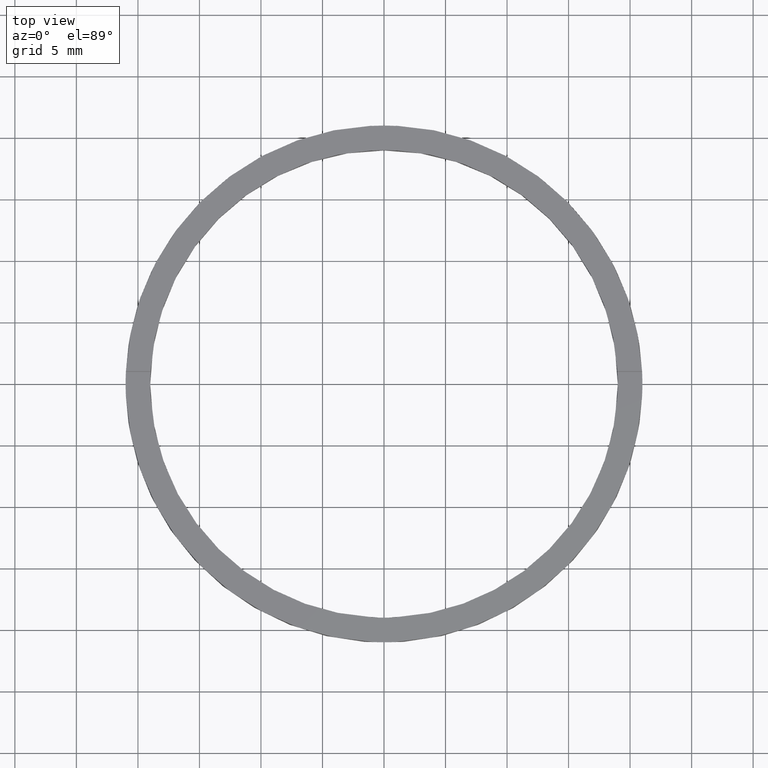
[diagram: clean part render]
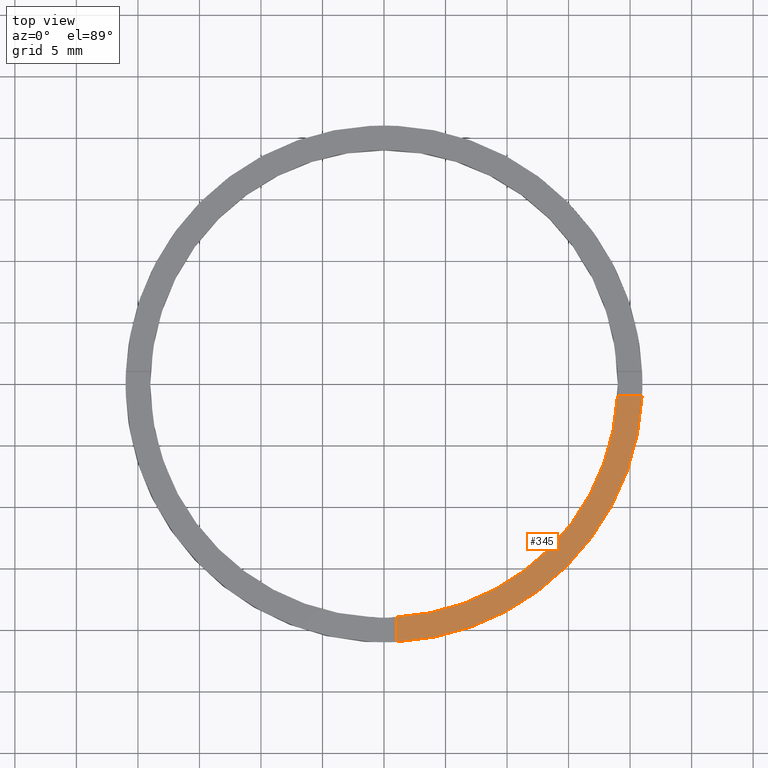
[diagram: same view with one face highlighted and labeled with its STEP entity id]
A machine part, top view. The second image highlights one B-rep face of the part: STEP entity #345.
In plain terms, the highlighted planar face has unit normal (0, 0, 1).
Its self-contained STEP definition (entity closure, byte-faithful):
#31 = VERTEX_POINT ( 'NONE', #265 ) ;
#40 = ORIENTED_EDGE ( 'NONE', *, *, #507, .F. ) ;
#60 = AXIS2_PLACEMENT_3D ( 'NONE', #463, #91, #768 ) ;
#91 = DIRECTION ( 'NONE',  ( 0.000000000000000000, 0.000000000000000000, 1.000000000000000000 ) ) ;
#108 = EDGE_CURVE ( 'NONE', #571, #250, #629, .T. ) ;
#133 = CARTESIAN_POINT ( 'NONE',  ( 0.000000000000000000, 0.000000000000000000, 2.500000000000000000 ) ) ;
#175 = LINE ( 'NONE', #666, #442 ) ;
#187 = ORIENTED_EDGE ( 'NONE', *, *, #299, .F. ) ;
#191 = FACE_OUTER_BOUND ( 'NONE', #490, .T. ) ;
#217 = DIRECTION ( 'NONE',  ( 1.000000000000000000, 0.000000000000000000, -0.000000000000000000 ) ) ;
#250 = VERTEX_POINT ( 'NONE', #724 ) ;
#263 = PLANE ( 'NONE',  #741 ) ;
#265 = CARTESIAN_POINT ( 'NONE',  ( 18.97366596101026914, -1.000000000000158318, 2.500000000000000000 ) ) ;
#299 = EDGE_CURVE ( 'NONE', #771, #31, #665, .T. ) ;
#301 = ORIENTED_EDGE ( 'NONE', *, *, #108, .T. ) ;
#333 = CARTESIAN_POINT ( 'NONE',  ( 0.000000000000000000, 0.000000000000000000, 2.500000000000000000 ) ) ;
#345 = ADVANCED_FACE ( 'NONE', ( #191 ), #263, .T. ) ;
#389 = DIRECTION ( 'NONE',  ( 1.000000000000000000, 4.336808689942017120E-17, 0.000000000000000000 ) ) ;
#424 = LINE ( 'NONE', #715, #434 ) ;
#434 = VECTOR ( 'NONE', #778, 1000.000000000000000 ) ;
#442 = VECTOR ( 'NONE', #389, 1000.000000000000000 ) ;
#463 = CARTESIAN_POINT ( 'NONE',  ( 0.000000000000000000, 0.000000000000000000, 2.500000000000000000 ) ) ;
#490 = EDGE_LOOP ( 'NONE', ( #732, #187, #40, #301 ) ) ;
#507 = EDGE_CURVE ( 'NONE', #571, #771, #424, .T. ) ;
#571 = VERTEX_POINT ( 'NONE', #679 ) ;
#622 = AXIS2_PLACEMENT_3D ( 'NONE', #133, #765, #683 ) ;
#629 = CIRCLE ( 'NONE', #622, 21.00000000000000000 ) ;
#643 = DIRECTION ( 'NONE',  ( 0.000000000000000000, 0.000000000000000000, 1.000000000000000000 ) ) ;
#665 = CIRCLE ( 'NONE', #60, 19.00000000000000000 ) ;
#666 = CARTESIAN_POINT ( 'NONE',  ( 10.99999999999999645, -1.000000000000158762, 2.500000000000000000 ) ) ;
#679 = CARTESIAN_POINT ( 'NONE',  ( 0.9999999999998380185, -20.97617696340303794, 2.500000000000000000 ) ) ;
#683 = DIRECTION ( 'NONE',  ( 1.000000000000000000, 0.000000000000000000, 0.000000000000000000 ) ) ;
#715 = CARTESIAN_POINT ( 'NONE',  ( 0.9999999999998371303, -11.00000000000018119, 2.500000000000000000 ) ) ;
#724 = CARTESIAN_POINT ( 'NONE',  ( 20.97617696340302373, -1.000000000000158318, 2.500000000000000000 ) ) ;
#732 = ORIENTED_EDGE ( 'NONE', *, *, #754, .F. ) ;
#741 = AXIS2_PLACEMENT_3D ( 'NONE', #333, #643, #217 ) ;
#754 = EDGE_CURVE ( 'NONE', #31, #250, #175, .T. ) ;
#762 = CARTESIAN_POINT ( 'NONE',  ( 0.9999999999998375744, -18.97366596101028335, 2.500000000000000000 ) ) ;
#765 = DIRECTION ( 'NONE',  ( 0.000000000000000000, 0.000000000000000000, 1.000000000000000000 ) ) ;
#768 = DIRECTION ( 'NONE',  ( 1.000000000000000000, 0.000000000000000000, 0.000000000000000000 ) ) ;
#771 = VERTEX_POINT ( 'NONE', #762 ) ;
#778 = DIRECTION ( 'NONE',  ( -1.301042606982605074E-16, 1.000000000000000000, -0.000000000000000000 ) ) ;